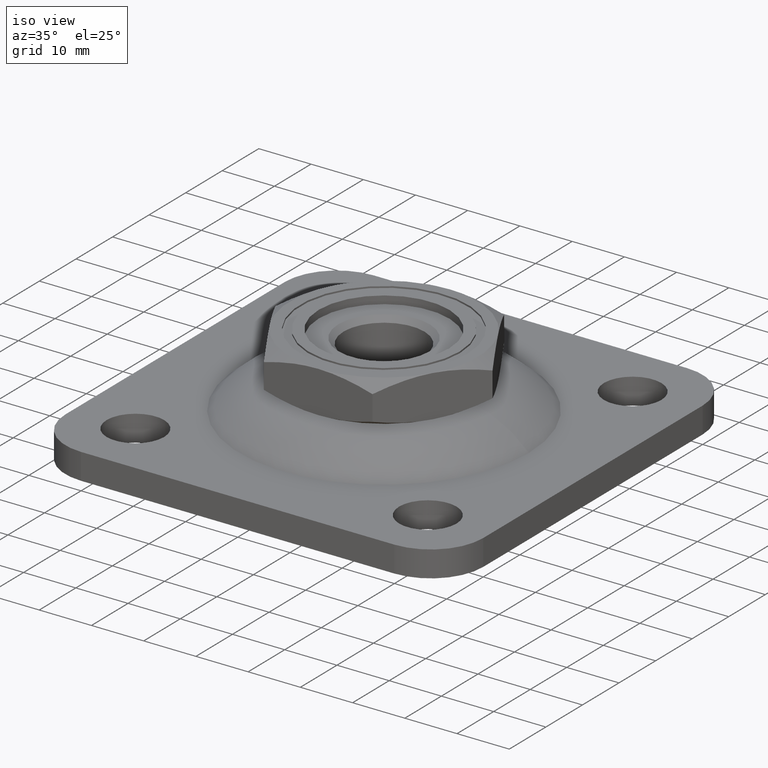
[diagram: clean part render]
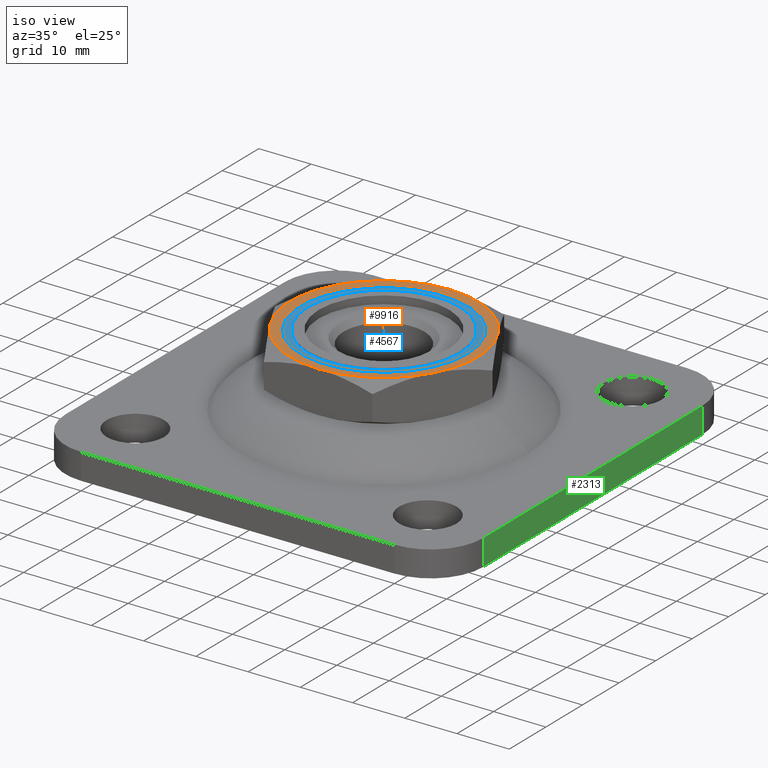
[diagram: same view with three faces highlighted in distinct colors, each labeled with its STEP entity id]
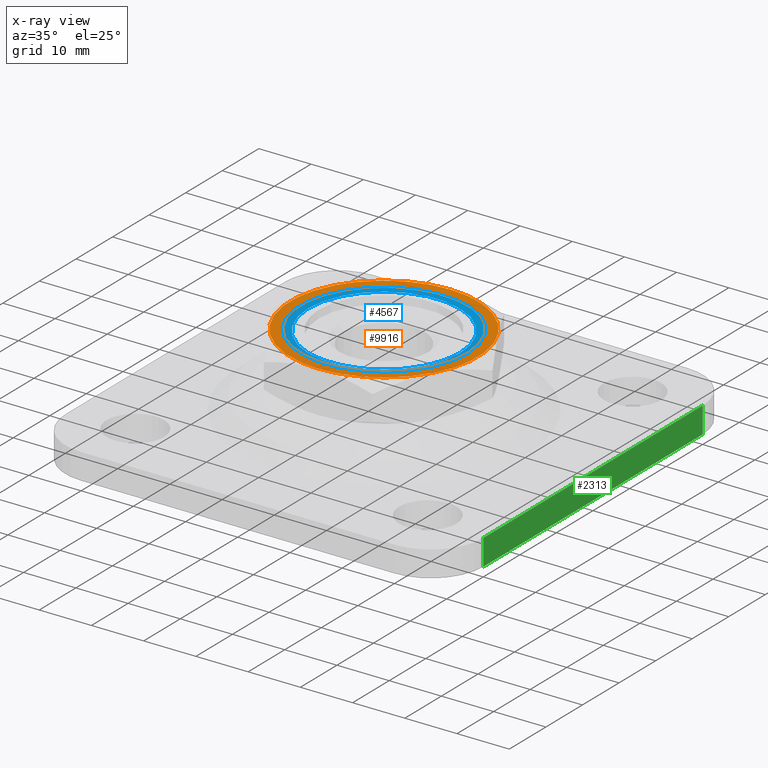
[diagram: x-ray of the same camera — body ghosted, the three highlighted faces saturated]
A machine part, iso view with three faces highlighted in distinct colors.
The next image is the same camera in x-ray (body ghosted, the three faces saturated) — at least one of them is partly hidden behind the body in this view.
Their STEP definitions:

[orange] entity #9916 — the highlighted planar face has unit normal (0, -0, 1).
#1074 = CARTESIAN_POINT ( 'NONE',  ( 0.000000000000000000, 0.000000000000000000, 18.99999999999999645 ) ) ;
#1152 = CARTESIAN_POINT ( 'NONE',  ( 0.000000000000000000, 0.000000000000000000, 19.00000000000000000 ) ) ;
#1258 = CARTESIAN_POINT ( 'NONE',  ( 0.000000000000000000, 0.000000000000000000, 19.00000000000000000 ) ) ;
#1263 = AXIS2_PLACEMENT_3D ( 'NONE', #11961, #5584, #5738 ) ;
#1478 = FACE_OUTER_BOUND ( 'NONE', #12896, .T. ) ;
#1628 = VERTEX_POINT ( 'NONE', #4652 ) ;
#1736 = VERTEX_POINT ( 'NONE', #3155 ) ;
#1842 = ORIENTED_EDGE ( 'NONE', *, *, #5473, .F. ) ;
#2144 = CARTESIAN_POINT ( 'NONE',  ( 15.58845726811989252, -9.000000000000000000, 18.99999999999999645 ) ) ;
#2179 = DIRECTION ( 'NONE',  ( -0.000000000000000000, 0.000000000000000000, -1.000000000000000000 ) ) ;
#2672 = CIRCLE ( 'NONE', #9960, 17.99999999999998934 ) ;
#3089 = ORIENTED_EDGE ( 'NONE', *, *, #8361, .F. ) ;
#3155 = CARTESIAN_POINT ( 'NONE',  ( 0.000000000000000000, 17.99999999999999645, 18.99999999999999645 ) ) ;
#3405 = DIRECTION ( 'NONE',  ( 1.000000000000000000, 0.000000000000000000, 0.000000000000000000 ) ) ;
#3478 = EDGE_CURVE ( 'NONE', #13939, #7028, #14056, .T. ) ;
#3782 = AXIS2_PLACEMENT_3D ( 'NONE', #1074, #13662, #6089 ) ;
#4034 = CARTESIAN_POINT ( 'NONE',  ( 0.000000000000000000, 0.000000000000000000, 19.00000000000000000 ) ) ;
#4122 = PLANE ( 'NONE',  #5461 ) ;
#4268 = CIRCLE ( 'NONE', #1263, 17.99999999999998934 ) ;
#4375 = DIRECTION ( 'NONE',  ( 1.000000000000000000, 0.000000000000000000, 0.000000000000000000 ) ) ;
#4483 = VERTEX_POINT ( 'NONE', #10147 ) ;
#4652 = CARTESIAN_POINT ( 'NONE',  ( -15.58845726811989074, 8.999999999999998224, 18.99999999999999645 ) ) ;
#4667 = ORIENTED_EDGE ( 'NONE', *, *, #3478, .F. ) ;
#4812 = CARTESIAN_POINT ( 'NONE',  ( 15.58845726811988897, 9.000000000000000000, 18.99999999999999645 ) ) ;
#5109 = AXIS2_PLACEMENT_3D ( 'NONE', #10985, #2179, #13258 ) ;
#5188 = DIRECTION ( 'NONE',  ( 1.000000000000000000, 0.000000000000000000, 0.000000000000000000 ) ) ;
#5461 = AXIS2_PLACEMENT_3D ( 'NONE', #12845, #14087, #11757 ) ;
#5473 = EDGE_CURVE ( 'NONE', #9972, #1628, #4268, .T. ) ;
#5477 = EDGE_CURVE ( 'NONE', #4483, #4483, #8559, .T. ) ;
#5584 = DIRECTION ( 'NONE',  ( -0.000000000000000000, 0.000000000000000000, -1.000000000000000000 ) ) ;
#5738 = DIRECTION ( 'NONE',  ( 1.000000000000000000, 1.776356839400250465E-15, 0.000000000000000000 ) ) ;
#6089 = DIRECTION ( 'NONE',  ( -1.000000000000000000, 0.000000000000000000, 0.000000000000000000 ) ) ;
#6265 = DIRECTION ( 'NONE',  ( -0.000000000000000000, 0.000000000000000000, -1.000000000000000000 ) ) ;
#6824 = CARTESIAN_POINT ( 'NONE',  ( -15.58845726811988897, -9.000000000000001776, 18.99999999999999645 ) ) ;
#6932 = DIRECTION ( 'NONE',  ( 0.000000000000000000, 0.000000000000000000, 1.000000000000000000 ) ) ;
#7028 = VERTEX_POINT ( 'NONE', #2144 ) ;
#7255 = FACE_BOUND ( 'NONE', #9872, .T. ) ;
#7466 = DIRECTION ( 'NONE',  ( -0.000000000000000000, 0.000000000000000000, -1.000000000000000000 ) ) ;
#7645 = CIRCLE ( 'NONE', #15596, 17.99999999999998934 ) ;
#7984 = EDGE_CURVE ( 'NONE', #7028, #11699, #2672, .T. ) ;
#8361 = EDGE_CURVE ( 'NONE', #1736, #13939, #8735, .T. ) ;
#8559 = CIRCLE ( 'NONE', #11614, 16.00000000000000000 ) ;
#8735 = CIRCLE ( 'NONE', #16112, 17.99999999999998934 ) ;
#8905 = ORIENTED_EDGE ( 'NONE', *, *, #9641, .F. ) ;
#9641 = EDGE_CURVE ( 'NONE', #1628, #1736, #9659, .T. ) ;
#9659 = CIRCLE ( 'NONE', #3782, 17.99999999999999645 ) ;
#9768 = DIRECTION ( 'NONE',  ( -0.000000000000000000, 0.000000000000000000, -1.000000000000000000 ) ) ;
#9872 = EDGE_LOOP ( 'NONE', ( #15344 ) ) ;
#9916 = ADVANCED_FACE ( 'NONE', ( #7255, #1478 ), #4122, .T. ) ;
#9960 = AXIS2_PLACEMENT_3D ( 'NONE', #1152, #9768, #3405 ) ;
#9972 = VERTEX_POINT ( 'NONE', #6824 ) ;
#10147 = CARTESIAN_POINT ( 'NONE',  ( 16.00000000000000000, 0.000000000000000000, 19.00000000000000000 ) ) ;
#10985 = CARTESIAN_POINT ( 'NONE',  ( 0.000000000000000000, 0.000000000000000000, 19.00000000000000000 ) ) ;
#11359 = CARTESIAN_POINT ( 'NONE',  ( 0.000000000000000000, -17.99999999999999645, 18.99999999999999645 ) ) ;
#11412 = DIRECTION ( 'NONE',  ( 1.000000000000000000, 0.000000000000000000, 0.000000000000000000 ) ) ;
#11614 = AXIS2_PLACEMENT_3D ( 'NONE', #11861, #6932, #4375 ) ;
#11699 = VERTEX_POINT ( 'NONE', #11359 ) ;
#11757 = DIRECTION ( 'NONE',  ( 1.000000000000000000, 0.000000000000000000, -0.000000000000000000 ) ) ;
#11861 = CARTESIAN_POINT ( 'NONE',  ( 0.000000000000000000, 0.000000000000000000, 19.00000000000000000 ) ) ;
#11961 = CARTESIAN_POINT ( 'NONE',  ( 0.000000000000000000, 0.000000000000000000, 19.00000000000000000 ) ) ;
#12474 = ORIENTED_EDGE ( 'NONE', *, *, #13388, .F. ) ;
#12493 = ORIENTED_EDGE ( 'NONE', *, *, #7984, .F. ) ;
#12845 = CARTESIAN_POINT ( 'NONE',  ( 0.000000000000000000, 0.000000000000000000, 19.00000000000000000 ) ) ;
#12896 = EDGE_LOOP ( 'NONE', ( #12493, #4667, #3089, #8905, #1842, #12474 ) ) ;
#13258 = DIRECTION ( 'NONE',  ( 1.000000000000000000, 0.000000000000000000, 0.000000000000000000 ) ) ;
#13388 = EDGE_CURVE ( 'NONE', #11699, #9972, #7645, .T. ) ;
#13662 = DIRECTION ( 'NONE',  ( -0.000000000000000000, -0.000000000000000000, -1.000000000000000000 ) ) ;
#13939 = VERTEX_POINT ( 'NONE', #4812 ) ;
#14056 = CIRCLE ( 'NONE', #5109, 17.99999999999998934 ) ;
#14087 = DIRECTION ( 'NONE',  ( 0.000000000000000000, -0.000000000000000000, 1.000000000000000000 ) ) ;
#15344 = ORIENTED_EDGE ( 'NONE', *, *, #5477, .F. ) ;
#15596 = AXIS2_PLACEMENT_3D ( 'NONE', #4034, #6265, #11412 ) ;
#16112 = AXIS2_PLACEMENT_3D ( 'NONE', #1258, #7466, #5188 ) ;

[blue] entity #4567 — the highlighted planar face has unit normal (0, 0, 1).
#569 = FACE_OUTER_BOUND ( 'NONE', #4117, .T. ) ;
#643 = DIRECTION ( 'NONE',  ( 0.000000000000000000, 0.000000000000000000, 1.000000000000000000 ) ) ;
#1190 = PLANE ( 'NONE',  #12443 ) ;
#1745 = CIRCLE ( 'NONE', #8550, 16.00000000000000000 ) ;
#1764 = ORIENTED_EDGE ( 'NONE', *, *, #5994, .T. ) ;
#3137 = DIRECTION ( 'NONE',  ( 1.000000000000000000, 0.000000000000000000, 0.000000000000000000 ) ) ;
#4117 = EDGE_LOOP ( 'NONE', ( #1764 ) ) ;
#4544 = EDGE_LOOP ( 'NONE', ( #6727 ) ) ;
#4567 = ADVANCED_FACE ( 'NONE', ( #4881, #569 ), #1190, .T. ) ;
#4839 = DIRECTION ( 'NONE',  ( 1.000000000000000000, 0.000000000000000000, -0.000000000000000000 ) ) ;
#4881 = FACE_BOUND ( 'NONE', #4544, .T. ) ;
#5994 = EDGE_CURVE ( 'NONE', #9537, #9537, #1745, .T. ) ;
#6515 = AXIS2_PLACEMENT_3D ( 'NONE', #11250, #13677, #13848 ) ;
#6727 = ORIENTED_EDGE ( 'NONE', *, *, #11658, .F. ) ;
#8550 = AXIS2_PLACEMENT_3D ( 'NONE', #13293, #643, #3137 ) ;
#9537 = VERTEX_POINT ( 'NONE', #12853 ) ;
#10999 = CARTESIAN_POINT ( 'NONE',  ( 0.000000000000000000, 0.000000000000000000, 18.69999999999999929 ) ) ;
#11250 = CARTESIAN_POINT ( 'NONE',  ( 0.000000000000000000, 0.000000000000000000, 18.69999999999999929 ) ) ;
#11658 = EDGE_CURVE ( 'NONE', #14426, #14426, #14879, .T. ) ;
#12443 = AXIS2_PLACEMENT_3D ( 'NONE', #10999, #13605, #4839 ) ;
#12652 = CARTESIAN_POINT ( 'NONE',  ( 14.50000000000000000, 0.000000000000000000, 18.69999999999999929 ) ) ;
#12853 = CARTESIAN_POINT ( 'NONE',  ( 16.00000000000000000, 0.000000000000000000, 18.69999999999999929 ) ) ;
#13293 = CARTESIAN_POINT ( 'NONE',  ( 0.000000000000000000, 0.000000000000000000, 18.69999999999999929 ) ) ;
#13605 = DIRECTION ( 'NONE',  ( 0.000000000000000000, 0.000000000000000000, 1.000000000000000000 ) ) ;
#13677 = DIRECTION ( 'NONE',  ( 0.000000000000000000, 0.000000000000000000, 1.000000000000000000 ) ) ;
#13848 = DIRECTION ( 'NONE',  ( 1.000000000000000000, 0.000000000000000000, 0.000000000000000000 ) ) ;
#14426 = VERTEX_POINT ( 'NONE', #12652 ) ;
#14879 = CIRCLE ( 'NONE', #6515, 14.50000000000000000 ) ;

[green] entity #2313 — the highlighted planar face has unit normal (1, -0, 0).
#151 = VECTOR ( 'NONE', #13673, 1000.000000000000000 ) ;
#446 = FACE_OUTER_BOUND ( 'NONE', #11263, .T. ) ;
#606 = DIRECTION ( 'NONE',  ( 0.000000000000000000, 0.000000000000000000, -1.000000000000000000 ) ) ;
#815 = CARTESIAN_POINT ( 'NONE',  ( 40.00000000000000711, -30.00000000000000000, 0.000000000000000000 ) ) ;
#1057 = CARTESIAN_POINT ( 'NONE',  ( 40.00000000000000711, -30.00000000000000000, 5.000000000000004441 ) ) ;
#1821 = VECTOR ( 'NONE', #5445, 1000.000000000000000 ) ;
#2313 = ADVANCED_FACE ( 'NONE', ( #446 ), #14369, .T. ) ;
#3122 = ORIENTED_EDGE ( 'NONE', *, *, #7250, .F. ) ;
#4536 = LINE ( 'NONE', #14442, #12767 ) ;
#4845 = CARTESIAN_POINT ( 'NONE',  ( 40.00000000000000711, 30.00000000000000000, 0.000000000000000000 ) ) ;
#4959 = CARTESIAN_POINT ( 'NONE',  ( 40.00000000000000711, -3.469446951953614978E-15, 5.000000000000004441 ) ) ;
#5161 = LINE ( 'NONE', #15203, #1821 ) ;
#5445 = DIRECTION ( 'NONE',  ( -8.673617379884035472E-17, -1.000000000000000000, 0.000000000000000000 ) ) ;
#5566 = VERTEX_POINT ( 'NONE', #1057 ) ;
#6001 = LINE ( 'NONE', #4959, #151 ) ;
#6706 = ORIENTED_EDGE ( 'NONE', *, *, #11014, .T. ) ;
#7071 = CARTESIAN_POINT ( 'NONE',  ( 40.00000000000000711, 30.00000000000000000, 5.000000000000004441 ) ) ;
#7250 = EDGE_CURVE ( 'NONE', #5566, #15733, #6001, .T. ) ;
#7656 = ORIENTED_EDGE ( 'NONE', *, *, #11850, .F. ) ;
#8205 = CARTESIAN_POINT ( 'NONE',  ( 40.00000000000000711, -3.469446951953614978E-15, 61.56854249492381115 ) ) ;
#8731 = EDGE_CURVE ( 'NONE', #5566, #11094, #9114, .T. ) ;
#9114 = LINE ( 'NONE', #10709, #15141 ) ;
#9361 = DIRECTION ( 'NONE',  ( 1.000000000000000000, -8.673617379884036705E-17, 0.000000000000000000 ) ) ;
#9784 = ORIENTED_EDGE ( 'NONE', *, *, #8731, .T. ) ;
#10709 = CARTESIAN_POINT ( 'NONE',  ( 40.00000000000000711, -30.00000000000000000, 61.56854249492381115 ) ) ;
#11014 = EDGE_CURVE ( 'NONE', #14878, #15733, #4536, .T. ) ;
#11094 = VERTEX_POINT ( 'NONE', #815 ) ;
#11263 = EDGE_LOOP ( 'NONE', ( #7656, #6706, #3122, #9784 ) ) ;
#11850 = EDGE_CURVE ( 'NONE', #14878, #11094, #5161, .T. ) ;
#12767 = VECTOR ( 'NONE', #15714, 1000.000000000000000 ) ;
#13673 = DIRECTION ( 'NONE',  ( 8.673617379884036705E-17, 1.000000000000000000, 0.000000000000000000 ) ) ;
#14214 = DIRECTION ( 'NONE',  ( 8.673617379884036705E-17, 1.000000000000000000, 0.000000000000000000 ) ) ;
#14369 = PLANE ( 'NONE',  #14900 ) ;
#14442 = CARTESIAN_POINT ( 'NONE',  ( 40.00000000000000711, 30.00000000000000000, 5.000000000000004441 ) ) ;
#14878 = VERTEX_POINT ( 'NONE', #4845 ) ;
#14900 = AXIS2_PLACEMENT_3D ( 'NONE', #8205, #9361, #14214 ) ;
#15141 = VECTOR ( 'NONE', #606, 1000.000000000000000 ) ;
#15203 = CARTESIAN_POINT ( 'NONE',  ( 40.00000000000000711, -3.469446951953614978E-15, 0.000000000000000000 ) ) ;
#15714 = DIRECTION ( 'NONE',  ( -0.000000000000000000, -0.000000000000000000, 1.000000000000000000 ) ) ;
#15733 = VERTEX_POINT ( 'NONE', #7071 ) ;